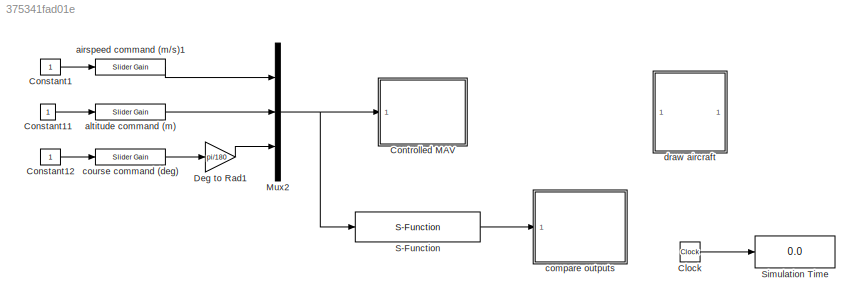
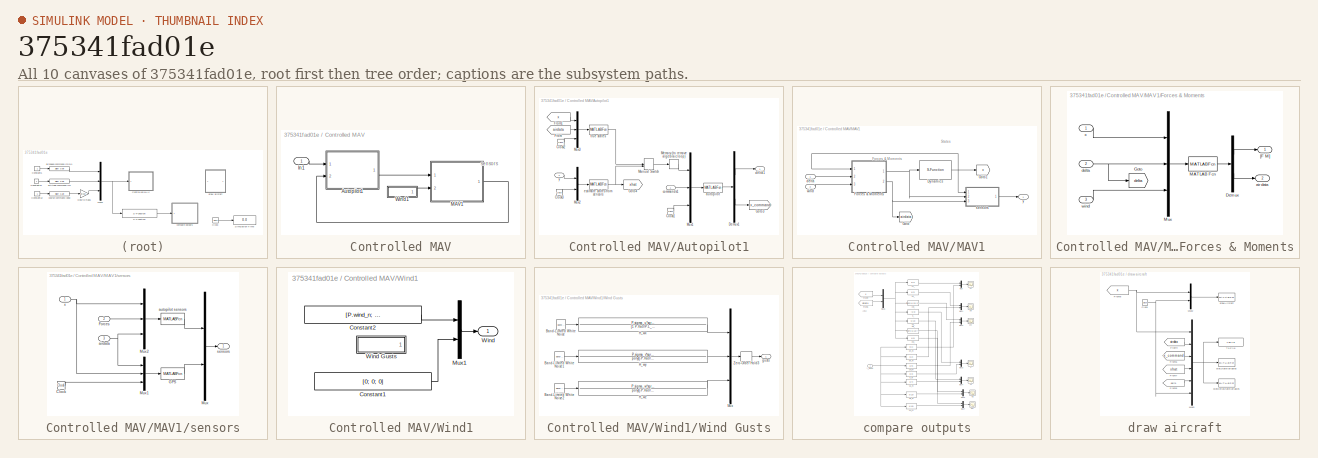
[diagram: thumbnail index - all 10 canvases of the model, root first then tree order]
MODEL slx_375341fad01e
KIND model
CONFIG AbsTol = auto
CONFIG EnableMultiTasking = on
CONFIG FixedStep = auto
CONFIG InitFcn = param_chap9
CONFIG MaxStep = auto
CONFIG MinStep = auto
CONFIG RelTol = 1e-3
CONFIG SampleTimeConstraint = Unconstrained
CONFIG Solver = ode45
CONFIG SolverName = ode45
CONFIG StartTime = 0.0
CONFIG StopTime = 99999
BLOCK [Clock] Clock
BLOCK [Constant] Constant1
BLOCK [Constant] Constant11
BLOCK [Constant] Constant12
BLOCK [SubSystem] Controlled MAV
  Ports = [1]
  RequestExecContextInheritance = off
  Variant = off
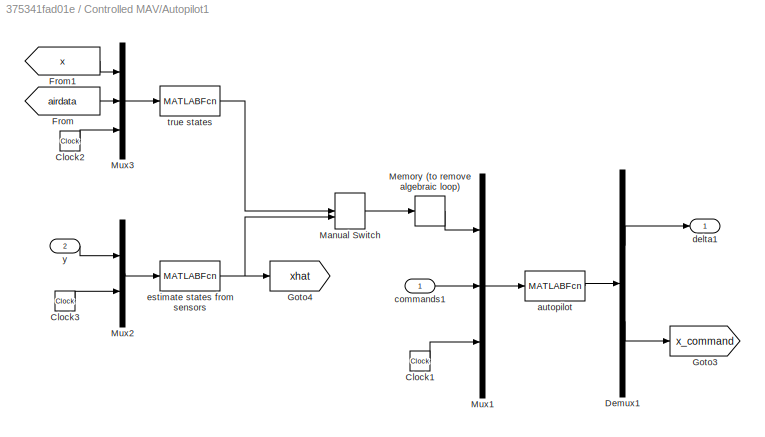
BLOCK [SubSystem] Controlled MAV/Autopilot1
  Ports = [2, 1]
  RequestExecContextInheritance = off
  Variant = off
BLOCK [Clock] Controlled MAV/Autopilot1/Clock1
BLOCK [Clock] Controlled MAV/Autopilot1/Clock2
BLOCK [Clock] Controlled MAV/Autopilot1/Clock3
BLOCK [Demux] Controlled MAV/Autopilot1/Demux1
  DisplayOption = bar
  Outputs = [4;12]
  Ports = [1, 2]
BLOCK [From] Controlled MAV/Autopilot1/From
  GotoTag = airdata
  TagVisibility = global
BLOCK [From] Controlled MAV/Autopilot1/From1
  GotoTag = x
  TagVisibility = global
BLOCK [Goto] Controlled MAV/Autopilot1/Goto3
  GotoTag = x_command
  TagVisibility = global
BLOCK [Goto] Controlled MAV/Autopilot1/Goto4
  GotoTag = xhat
  TagVisibility = global
BLOCK [ManualSwitch] Controlled MAV/Autopilot1/Manual Switch
BLOCK [Memory] Controlled MAV/Autopilot1/Memory (to remove algebraic loop)
BLOCK [Mux] Controlled MAV/Autopilot1/Mux1
  DisplayOption = bar
  Inputs = 3
  Ports = [3, 1]
BLOCK [Mux] Controlled MAV/Autopilot1/Mux2
  DisplayOption = bar
  Inputs = 2
  Ports = [2, 1]
BLOCK [Mux] Controlled MAV/Autopilot1/Mux3
  DisplayOption = bar
  Inputs = 3
  Ports = [3, 1]
BLOCK [MATLABFcn] Controlled MAV/Autopilot1/autopilot
  MATLABFcn = autopilot_phi_c(u,P)
  OutputDimensions = 4+12
  Ports = [1, 1]
  SampleTime = P.Ts
BLOCK [Inport] Controlled MAV/Autopilot1/commands1
  IconDisplay = Port number
BLOCK [Outport] Controlled MAV/Autopilot1/delta1
  IconDisplay = Port number
BLOCK [MATLABFcn] Controlled MAV/Autopilot1/estimate states from sensors
  MATLABFcn = estimate_states(u,P)
  OutputDimensions = 19
  Ports = [1, 1]
  SampleTime = P.Ts
BLOCK [MATLABFcn] Controlled MAV/Autopilot1/true states
  MATLABFcn = true_states(u,P)
  OutputDimensions = 19
  Ports = [1, 1]
  SampleTime = P.Ts
BLOCK [Inport] Controlled MAV/Autopilot1/y
  IconDisplay = Port number
  Port = 2
BLOCK [Inport] Controlled MAV/In1
  IconDisplay = Port number
BLOCK [SubSystem] Controlled MAV/MAV1
  Ports = [2, 1]
  RequestExecContextInheritance = off
  Variant = off
BLOCK [S-Function] Controlled MAV/MAV1/Dynamics
  EnableBusSupport = off
  FunctionName = mav_dynamics
  Parameters = P
  Ports = [1, 1]
  SFcnIsStateOwnerBlock = off
  SFunctionDeploymentMode = off
BLOCK [SubSystem] Controlled MAV/MAV1/Forces & Moments
  Ports = [3, 2]
  RequestExecContextInheritance = off
  Variant = off
BLOCK [Demux] Controlled MAV/MAV1/Forces & Moments/Demux
  DisplayOption = bar
  Outputs = [6;6]
  Ports = [1, 2]
BLOCK [Goto] Controlled MAV/MAV1/Forces & Moments/Goto
  GotoTag = delta
  TagVisibility = global
BLOCK [MATLABFcn] Controlled MAV/MAV1/Forces & Moments/MATLAB Fcn
  MATLABFcn = forces_moments(u(1:12),u(13:16),u(17:22),P)
  OutputDimensions = 12
  Ports = [1, 1]
BLOCK [Mux] Controlled MAV/MAV1/Forces & Moments/Mux
  DisplayOption = bar
  Inputs = 3
  Ports = [3, 1]
BLOCK [Outport] Controlled MAV/MAV1/Forces & Moments/[F M]
  IconDisplay = Port number
BLOCK [Outport] Controlled MAV/MAV1/Forces & Moments/air data
  IconDisplay = Port number
  Port = 2
BLOCK [Inport] Controlled MAV/MAV1/Forces & Moments/delta
  IconDisplay = Port number
  Port = 2
BLOCK [Inport] Controlled MAV/MAV1/Forces & Moments/wind
  IconDisplay = Port number
  Port = 3
BLOCK [Inport] Controlled MAV/MAV1/Forces & Moments/x
  IconDisplay = Port number
BLOCK [Goto] Controlled MAV/MAV1/Goto
  GotoTag = airdata
  TagVisibility = global
BLOCK [Goto] Controlled MAV/MAV1/Goto1
  GotoTag = x
  TagVisibility = global
BLOCK [Inport] Controlled MAV/MAV1/delta
  IconDisplay = Port number
BLOCK [SubSystem] Controlled MAV/MAV1/sensors
  Ports = [3, 1]
  RequestExecContextInheritance = off
  Variant = off
BLOCK [Clock] Controlled MAV/MAV1/sensors/Clock
BLOCK [Inport] Controlled MAV/MAV1/sensors/Forces
  IconDisplay = Port number
  Port = 2
BLOCK [MATLABFcn] Controlled MAV/MAV1/sensors/GPS
  MATLABFcn = gps(u,P)
  OutputDimensions = 5
  Ports = [1, 1]
  SampleTime = P.Ts_gps
BLOCK [Mux] Controlled MAV/MAV1/sensors/Mux
  DisplayOption = bar
  Inputs = 2
  Ports = [2, 1]
BLOCK [Mux] Controlled MAV/MAV1/sensors/Mux1
  DisplayOption = bar
  Inputs = 3
  Ports = [3, 1]
BLOCK [Mux] Controlled MAV/MAV1/sensors/Mux2
  DisplayOption = bar
  Inputs = 3
  Ports = [3, 1]
BLOCK [Inport] Controlled MAV/MAV1/sensors/airdata
  IconDisplay = Port number
  Port = 3
BLOCK [MATLABFcn] Controlled MAV/MAV1/sensors/autopilot sensors
  MATLABFcn = sensors(u,P)
  OutputDimensions = 8
  Ports = [1, 1]
  SampleTime = P.Ts
BLOCK [Outport] Controlled MAV/MAV1/sensors/sensors
  IconDisplay = Port number
BLOCK [Inport] Controlled MAV/MAV1/sensors/x
  IconDisplay = Port number
BLOCK [Inport] Controlled MAV/MAV1/wind
  IconDisplay = Port number
  Port = 2
BLOCK [Outport] Controlled MAV/MAV1/y
  IconDisplay = Port number
BLOCK [SubSystem] Controlled MAV/Wind1
  Ports = [0, 1]
  RequestExecContextInheritance = off
  Variant = off
BLOCK [Constant] Controlled MAV/Wind1/Constant1
  Value = [0; 0; 0]
BLOCK [Constant] Controlled MAV/Wind1/Constant2
  Value = [P.wind_n; P.wind_e; P.wind_d]
BLOCK [Mux] Controlled MAV/Wind1/Mux1
  DisplayOption = bar
  Inputs = 2
  Ports = [2, 1]
BLOCK [Outport] Controlled MAV/Wind1/Wind
  IconDisplay = Port number
BLOCK [SubSystem] Controlled MAV/Wind1/Wind Gusts
  Ports = [0, 1]
  RequestExecContextInheritance = off
  Variant = off
BLOCK [Reference] Controlled MAV/Wind1/Wind Gusts/Band-Limited White Noise  REF=simulink/Sources/Band-Limited
White Noise
  Ports = [0, 1]
  SourceBlock = simulink/Sources/Band-Limited\nWhite Noise
  SourceProductBaseCode = SL
  SourceProductName = Simulink
  SourceType = Band-Limited White Noise.
BLOCK [Reference] Controlled MAV/Wind1/Wind Gusts/Band-Limited White Noise1  REF=simulink/Sources/Band-Limited
White Noise
  Ports = [0, 1]
  SourceBlock = simulink/Sources/Band-Limited\nWhite Noise
  SourceProductBaseCode = SL
  SourceProductName = Simulink
  SourceType = Band-Limited White Noise.
BLOCK [Reference] Controlled MAV/Wind1/Wind Gusts/Band-Limited White Noise2  REF=simulink/Sources/Band-Limited
White Noise
  Ports = [0, 1]
  SourceBlock = simulink/Sources/Band-Limited\nWhite Noise
  SourceProductBaseCode = SL
  SourceProductName = Simulink
  SourceType = Band-Limited White Noise.
BLOCK [TransferFcn] Controlled MAV/Wind1/Wind Gusts/H_wx
  Denominator = [1 P.Va0/P.L_u]
  Numerator = P.sigma_u*sqrt(2*P.Va0/P.L_u)
BLOCK [TransferFcn] Controlled MAV/Wind1/Wind Gusts/H_wy
  Denominator = poly([-P.Va0/P.L_v, -P.Va0/P.L_v])
  Numerator = P.sigma_v*sqrt(3*P.Va0/P.L_v)*[0, 1, P.Va0/sqrt(3)/P.L_v]
BLOCK [TransferFcn] Controlled MAV/Wind1/Wind Gusts/H_wz
  Denominator = poly([-P.Va0/P.L_w, -P.Va0/P.L_w])
  Numerator = P.sigma_w*sqrt(3*P.Va0/P.L_w)*[0, 1, P.Va0/sqrt(3)/P.L_w]
BLOCK [Mux] Controlled MAV/Wind1/Wind Gusts/Mux
  DisplayOption = bar
  Inputs = 3
  Ports = [3, 1]
BLOCK [ZeroOrderHold] Controlled MAV/Wind1/Wind Gusts/Zero-Order Hold3
  SampleTime = P.Ts
BLOCK [Outport] Controlled MAV/Wind1/Wind Gusts/gusts
  IconDisplay = Port number
BLOCK [Gain] Deg to Rad1
  Gain = pi/180
  OutDataTypeStr = Inherit: Inherit via internal rule
  ParamDataTypeStr = Inherit: Inherit via internal rule
  SaturateOnIntegerOverflow = off
BLOCK [Mux] Mux2
  DisplayOption = bar
  Inputs = 3
  Ports = [3, 1]
BLOCK [S-Function] S-Function
  EnableBusSupport = off
  FunctionName = guidance_model_2
  Parameters = P
  Ports = [1, 1]
  SFcnIsStateOwnerBlock = off
  SFunctionDeploymentMode = off
BLOCK [Display] Simulation Time
  Decimation = 1
  Ports = [1]
BLOCK [Reference] airspeed command (m//s)1  REF=simulink/Math
Operations/Slider
Gain
  Ports = [1, 1]
  SourceBlock = simulink/Math\nOperations/Slider\nGain
  SourceProductBaseCode = SL
  SourceProductName = Simulink
  SourceType = Slider Gain
BLOCK [Reference] altitude command (m)  REF=simulink/Math
Operations/Slider
Gain
  Ports = [1, 1]
  SourceBlock = simulink/Math\nOperations/Slider\nGain
  SourceProductBaseCode = SL
  SourceProductName = Simulink
  SourceType = Slider Gain
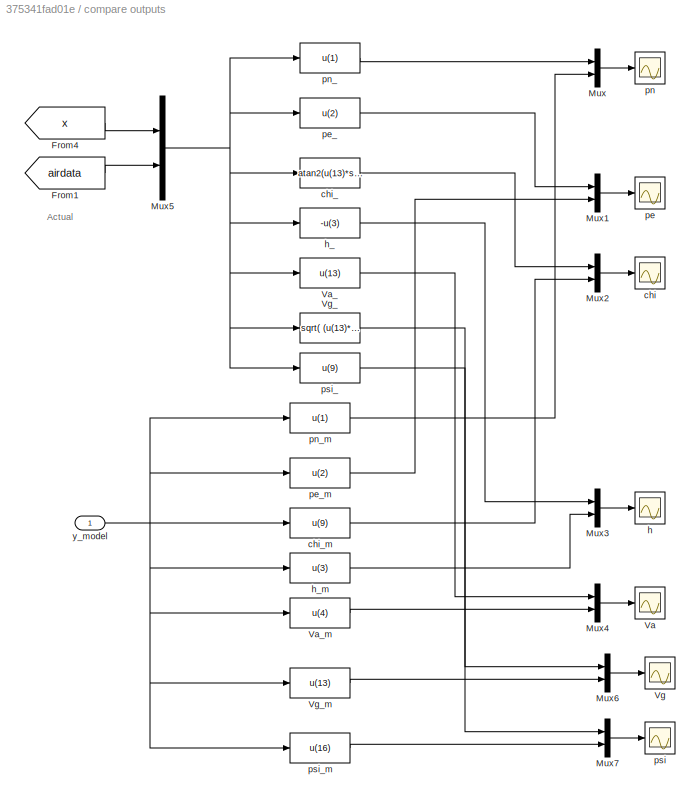
BLOCK [SubSystem] compare outputs
  Ports = [1]
  RequestExecContextInheritance = off
  Variant = off
BLOCK [From] compare outputs/From1
  CloseFcn = tagdialog Close
  GotoTag = airdata
  TagVisibility = global
BLOCK [From] compare outputs/From4
  CloseFcn = tagdialog Close
  GotoTag = x
  TagVisibility = global
BLOCK [Mux] compare outputs/Mux
  DisplayOption = bar
  Inputs = 2
  Ports = [2, 1]
BLOCK [Mux] compare outputs/Mux1
  DisplayOption = bar
  Inputs = 2
  Ports = [2, 1]
BLOCK [Mux] compare outputs/Mux2
  DisplayOption = bar
  Inputs = 2
  Ports = [2, 1]
BLOCK [Mux] compare outputs/Mux3
  DisplayOption = bar
  Inputs = 2
  Ports = [2, 1]
BLOCK [Mux] compare outputs/Mux4
  DisplayOption = bar
  Inputs = 2
  Ports = [2, 1]
BLOCK [Mux] compare outputs/Mux5
  DisplayOption = bar
  Inputs = 2
  Ports = [2, 1]
BLOCK [Mux] compare outputs/Mux6
  DisplayOption = bar
  Inputs = 2
  Ports = [2, 1]
BLOCK [Mux] compare outputs/Mux7
  DisplayOption = bar
  Inputs = 2
  Ports = [2, 1]
BLOCK [Scope] compare outputs/Va
  NumInputPorts = 1
  Ports = [1]
  ScopeSpecificationString = Simulink.scopes.TimeScopeBlockCfg('CurrentConfiguration', extmgr.ConfigurationSet(extmgr.Configuration('Core','General UI',true),extmgr.Configuration('Core','Source UI',true),extmgr.Configuration('Sources','WiredSimulink',true,'DataLoggingVariableName','ScopeData4','DataLoggingSaveFormat','StructureWithTime','DataLoggingDecimation','1','DataLoggingDecimateData',true),extmgr.Configuration('Visuals'...<+1748ch>
BLOCK [Fcn] compare outputs/Va_
  Expr = u(13)
BLOCK [Fcn] compare outputs/Va_m
  Expr = u(4)
BLOCK [Scope] compare outputs/Vg
  NumInputPorts = 1
  Ports = [1]
  ScopeSpecificationString = Simulink.scopes.TimeScopeBlockCfg('CurrentConfiguration', extmgr.ConfigurationSet(extmgr.Configuration('Core','General UI',true),extmgr.Configuration('Core','Source UI',true),extmgr.Configuration('Sources','WiredSimulink',true,'DataLoggingVariableName','ScopeData5','DataLoggingSaveFormat','StructureWithTime','DataLoggingDecimation','1','DataLoggingDecimateData',true),extmgr.Configuration('Visuals'...<+1695ch>
BLOCK [Fcn] compare outputs/Vg_
  Expr = sqrt( (u(13)*sin(u(9))+u(17))^2+(u(13)*cos(u(9))+u(16))^2)
BLOCK [Fcn] compare outputs/Vg_m
  Expr = u(13)
BLOCK [Scope] compare outputs/chi
  NumInputPorts = 1
  Ports = [1]
  ScopeSpecificationString = Simulink.scopes.TimeScopeBlockCfg('CurrentConfiguration', extmgr.ConfigurationSet(extmgr.Configuration('Core','General UI',true),extmgr.Configuration('Core','Source UI',true),extmgr.Configuration('Sources','WiredSimulink',true,'DataLoggingVariableName','ScopeData2','DataLoggingSaveFormat','StructureWithTime','DataLoggingDecimation','1','DataLoggingDecimateData',true),extmgr.Configuration('Visuals'...<+1743ch>
BLOCK [Fcn] compare outputs/chi_
  Expr = atan2(u(13)*sin(u(9))+u(17), u(13)*cos(u(9))+u(16))
BLOCK [Fcn] compare outputs/chi_m
  Expr = u(9)
BLOCK [Scope] compare outputs/h
  NumInputPorts = 1
  Ports = [1]
  ScopeSpecificationString = Simulink.scopes.TimeScopeBlockCfg('CurrentConfiguration', extmgr.ConfigurationSet(extmgr.Configuration('Core','General UI',true),extmgr.Configuration('Core','Source UI',true),extmgr.Configuration('Sources','WiredSimulink',true,'DataLoggingVariableName','ScopeData3','DataLoggingSaveFormat','StructureWithTime','DataLoggingDecimation','1','DataLoggingDecimateData',true),extmgr.Configuration('Visuals'...<+1780ch>
BLOCK [Fcn] compare outputs/h_
  Expr = -u(3)
BLOCK [Fcn] compare outputs/h_m
  Expr = u(3)
BLOCK [Scope] compare outputs/pe
  NumInputPorts = 1
  Ports = [1]
  ScopeSpecificationString = Simulink.scopes.TimeScopeBlockCfg('CurrentConfiguration', extmgr.ConfigurationSet(extmgr.Configuration('Core','General UI',true),extmgr.Configuration('Core','Source UI',true),extmgr.Configuration('Sources','WiredSimulink',true,'DataLoggingVariableName','ScopeData1','DataLoggingSaveFormat','StructureWithTime','DataLoggingDecimation','1','DataLoggingDecimateData',true),extmgr.Configuration('Visuals'...<+1699ch>
BLOCK [Fcn] compare outputs/pe_
  Expr = u(2)
BLOCK [Fcn] compare outputs/pe_m
  Expr = u(2)
BLOCK [Scope] compare outputs/pn
  NumInputPorts = 1
  Ports = [1]
  ScopeSpecificationString = Simulink.scopes.TimeScopeBlockCfg('CurrentConfiguration', extmgr.ConfigurationSet(extmgr.Configuration('Core','General UI',true),extmgr.Configuration('Core','Source UI',true),extmgr.Configuration('Sources','WiredSimulink',true,'DataLoggingSaveFormat','StructureWithTime','DataLoggingDecimation','1','DataLoggingDecimateData',true),extmgr.Configuration('Visuals','Time Domain',true,'SerializedDisplays...<+1658ch>
BLOCK [Fcn] compare outputs/pn_
  Expr = u(1)
BLOCK [Fcn] compare outputs/pn_m
  Expr = u(1)
BLOCK [Scope] compare outputs/psi
  NumInputPorts = 1
  Ports = [1]
  ScopeSpecificationString = Simulink.scopes.TimeScopeBlockCfg('CurrentConfiguration', extmgr.ConfigurationSet(extmgr.Configuration('Core','General UI',true),extmgr.Configuration('Core','Source UI',true),extmgr.Configuration('Sources','WiredSimulink',true,'DataLoggingVariableName','ScopeData6','DataLoggingSaveFormat','StructureWithTime','DataLoggingDecimation','1','DataLoggingDecimateData',true),extmgr.Configuration('Visuals'...<+1713ch>
BLOCK [Fcn] compare outputs/psi_
  Expr = u(9)
BLOCK [Fcn] compare outputs/psi_m
  Expr = u(16)
BLOCK [Inport] compare outputs/y_model
  IconDisplay = Port number
BLOCK [Reference] course command (deg)  REF=simulink/Math
Operations/Slider
Gain
  Ports = [1, 1]
  SourceBlock = simulink/Math\nOperations/Slider\nGain
  SourceProductBaseCode = SL
  SourceProductName = Simulink
  SourceType = Slider Gain
BLOCK [SubSystem] draw aircraft
  Ports = []
  RequestExecContextInheritance = off
  Variant = off
BLOCK [Clock] draw aircraft/Clock
BLOCK [From] draw aircraft/From4
  GotoTag = airdata
  TagVisibility = global
BLOCK [From] draw aircraft/From5
  CloseFcn = tagdialog Close
  GotoTag = delta
  TagVisibility = global
BLOCK [From] draw aircraft/From6
  CloseFcn = tagdialog Close
  GotoTag = x_command
  TagVisibility = global
BLOCK [From] draw aircraft/From7
  CloseFcn = tagdialog Close
  GotoTag = xhat
  TagVisibility = global
BLOCK [From] draw aircraft/From8
  CloseFcn = tagdialog Close
  GotoTag = x
  TagVisibility = global
BLOCK [Mux] draw aircraft/Mux2
  DisplayOption = bar
  Inputs = 2
  Ports = [2, 1]
BLOCK [Mux] draw aircraft/Mux3
  DisplayOption = bar
  Inputs = 6
  Ports = [6, 1]
BLOCK [ToFile] draw aircraft/To File
  Filename = state_data.mat
  Ports = [1]
BLOCK [MATLABFcn] draw aircraft/drawAircraft
  MATLABFcn = drawAircraft(u)
  OutputDimensions = 0
  Ports = [1]
  SampleTime = 0.1
BLOCK [MATLABFcn] draw aircraft/plotExtraStateVariables
  MATLABFcn = plotextramavstatevariables(u,P)
  OutputDimensions = 0
  Ports = [1]
  SampleTime = 0.1
BLOCK [MATLABFcn] draw aircraft/plotStateVariables
  MATLABFcn = plotmavstatevariables(u)
  OutputDimensions = 0
  Ports = [1]
  SampleTime = 0.1
ANNOTATION Controlled MAV: sensors
ANNOTATION Controlled MAV/MAV1: Forces & Moments
ANNOTATION Controlled MAV/MAV1: States
ANNOTATION compare outputs: Actual
LINE Clock:1 -> Simulation Time:1
LINE Constant11:1 -> altitude command (m):1
LINE Constant12:1 -> course command (deg):1
LINE Constant1:1 -> airspeed command (m//s)1:1
LINE Controlled MAV/Autopilot1/Clock1:1 -> Controlled MAV/Autopilot1/Mux1:3
LINE Controlled MAV/Autopilot1/Clock2:1 -> Controlled MAV/Autopilot1/Mux3:3
LINE Controlled MAV/Autopilot1/Clock3:1 -> Controlled MAV/Autopilot1/Mux2:2
LINE Controlled MAV/Autopilot1/Demux1:1 -> Controlled MAV/Autopilot1/delta1:1
LINE Controlled MAV/Autopilot1/Demux1:2 -> Controlled MAV/Autopilot1/Goto3:1
LINE Controlled MAV/Autopilot1/From1:1 -> Controlled MAV/Autopilot1/Mux3:1
LINE Controlled MAV/Autopilot1/From:1 -> Controlled MAV/Autopilot1/Mux3:2
LINE Controlled MAV/Autopilot1/Manual Switch:1 -> Controlled MAV/Autopilot1/Memory (to remove algebraic loop):1
LINE Controlled MAV/Autopilot1/Memory (to remove algebraic loop):1 -> Controlled MAV/Autopilot1/Mux1:1
LINE Controlled MAV/Autopilot1/Mux1:1 -> Controlled MAV/Autopilot1/autopilot:1
LINE Controlled MAV/Autopilot1/Mux2:1 -> Controlled MAV/Autopilot1/estimate states from sensors:1
LINE Controlled MAV/Autopilot1/Mux3:1 -> Controlled MAV/Autopilot1/true states:1
LINE Controlled MAV/Autopilot1/autopilot:1 -> Controlled MAV/Autopilot1/Demux1:1
LINE Controlled MAV/Autopilot1/commands1:1 -> Controlled MAV/Autopilot1/Mux1:2
NET Controlled MAV/Autopilot1/estimate states from sensors:1 -> Controlled MAV/Autopilot1/Goto4:1, Controlled MAV/Autopilot1/Manual Switch:2
LINE Controlled MAV/Autopilot1/true states:1 -> Controlled MAV/Autopilot1/Manual Switch:1
LINE Controlled MAV/Autopilot1/y:1 -> Controlled MAV/Autopilot1/Mux2:1
LINE Controlled MAV/Autopilot1:1 -> Controlled MAV/MAV1:1
LINE Controlled MAV/In1:1 -> Controlled MAV/Autopilot1:1
NET Controlled MAV/MAV1/Dynamics:1 -> Controlled MAV/MAV1/Forces & Moments:1, Controlled MAV/MAV1/Goto1:1, Controlled MAV/MAV1/sensors:1
LINE Controlled MAV/MAV1/Forces & Moments/Demux:1 -> Controlled MAV/MAV1/Forces & Moments/[F M]:1
LINE Controlled MAV/MAV1/Forces & Moments/Demux:2 -> Controlled MAV/MAV1/Forces & Moments/air data:1
LINE Controlled MAV/MAV1/Forces & Moments/MATLAB Fcn:1 -> Controlled MAV/MAV1/Forces & Moments/Demux:1
LINE Controlled MAV/MAV1/Forces & Moments/Mux:1 -> Controlled MAV/MAV1/Forces & Moments/MATLAB Fcn:1
NET Controlled MAV/MAV1/Forces & Moments/delta:1 -> Controlled MAV/MAV1/Forces & Moments/Goto:1, Controlled MAV/MAV1/Forces & Moments/Mux:2
LINE Controlled MAV/MAV1/Forces & Moments/wind:1 -> Controlled MAV/MAV1/Forces & Moments/Mux:3
LINE Controlled MAV/MAV1/Forces & Moments/x:1 -> Controlled MAV/MAV1/Forces & Moments/Mux:1
NET Controlled MAV/MAV1/Forces & Moments:1 -> Controlled MAV/MAV1/Dynamics:1, Controlled MAV/MAV1/sensors:2
NET Controlled MAV/MAV1/Forces & Moments:2 -> Controlled MAV/MAV1/Goto:1, Controlled MAV/MAV1/sensors:3
LINE Controlled MAV/MAV1/delta:1 -> Controlled MAV/MAV1/Forces & Moments:2
LINE Controlled MAV/MAV1/sensors/Clock:1 -> Controlled MAV/MAV1/sensors/Mux1:3
LINE Controlled MAV/MAV1/sensors/Forces:1 -> Controlled MAV/MAV1/sensors/Mux2:2
LINE Controlled MAV/MAV1/sensors/GPS:1 -> Controlled MAV/MAV1/sensors/Mux:2
LINE Controlled MAV/MAV1/sensors/Mux1:1 -> Controlled MAV/MAV1/sensors/GPS:1
LINE Controlled MAV/MAV1/sensors/Mux2:1 -> Controlled MAV/MAV1/sensors/autopilot sensors:1
LINE Controlled MAV/MAV1/sensors/Mux:1 -> Controlled MAV/MAV1/sensors/sensors:1
NET Controlled MAV/MAV1/sensors/airdata:1 -> Controlled MAV/MAV1/sensors/Mux1:1, Controlled MAV/MAV1/sensors/Mux2:3
LINE Controlled MAV/MAV1/sensors/autopilot sensors:1 -> Controlled MAV/MAV1/sensors/Mux:1
NET Controlled MAV/MAV1/sensors/x:1 -> Controlled MAV/MAV1/sensors/Mux1:2, Controlled MAV/MAV1/sensors/Mux2:1
LINE Controlled MAV/MAV1/sensors:1 -> Controlled MAV/MAV1/y:1
LINE Controlled MAV/MAV1/wind:1 -> Controlled MAV/MAV1/Forces & Moments:3
LINE Controlled MAV/MAV1:1 -> Controlled MAV/Autopilot1:2
LINE Controlled MAV/Wind1/Constant1:1 -> Controlled MAV/Wind1/Mux1:2
LINE Controlled MAV/Wind1/Constant2:1 -> Controlled MAV/Wind1/Mux1:1
LINE Controlled MAV/Wind1/Mux1:1 -> Controlled MAV/Wind1/Wind:1
LINE Controlled MAV/Wind1/Wind Gusts/Band-Limited White Noise1:1 -> Controlled MAV/Wind1/Wind Gusts/H_wy:1
LINE Controlled MAV/Wind1/Wind Gusts/Band-Limited White Noise2:1 -> Controlled MAV/Wind1/Wind Gusts/H_wz:1
LINE Controlled MAV/Wind1/Wind Gusts/Band-Limited White Noise:1 -> Controlled MAV/Wind1/Wind Gusts/H_wx:1
LINE Controlled MAV/Wind1/Wind Gusts/H_wx:1 -> Controlled MAV/Wind1/Wind Gusts/Mux:1
LINE Controlled MAV/Wind1/Wind Gusts/H_wy:1 -> Controlled MAV/Wind1/Wind Gusts/Mux:2
LINE Controlled MAV/Wind1/Wind Gusts/H_wz:1 -> Controlled MAV/Wind1/Wind Gusts/Mux:3
LINE Controlled MAV/Wind1/Wind Gusts/Mux:1 -> Controlled MAV/Wind1/Wind Gusts/Zero-Order Hold3:1
LINE Controlled MAV/Wind1/Wind Gusts/Zero-Order Hold3:1 -> Controlled MAV/Wind1/Wind Gusts/gusts:1
LINE Controlled MAV/Wind1:1 -> Controlled MAV/MAV1:2
LINE Deg to Rad1:1 -> Mux2:3
NET Mux2:1 -> Controlled MAV:1, S-Function:1
LINE S-Function:1 -> compare outputs:1
LINE airspeed command (m//s)1:1 -> Mux2:1
LINE altitude command (m):1 -> Mux2:2
LINE compare outputs/From1:1 -> compare outputs/Mux5:2
LINE compare outputs/From4:1 -> compare outputs/Mux5:1
LINE compare outputs/Mux1:1 -> compare outputs/pe:1
LINE compare outputs/Mux2:1 -> compare outputs/chi:1
LINE compare outputs/Mux3:1 -> compare outputs/h:1
LINE compare outputs/Mux4:1 -> compare outputs/Va:1
NET compare outputs/Mux5:1 -> compare outputs/Va_:1, compare outputs/Vg_:1, compare outputs/chi_:1, compare outputs/h_:1, compare outputs/pe_:1, compare outputs/pn_:1, compare outputs/psi_:1
LINE compare outputs/Mux6:1 -> compare outputs/Vg:1
LINE compare outputs/Mux7:1 -> compare outputs/psi:1
LINE compare outputs/Mux:1 -> compare outputs/pn:1
LINE compare outputs/Va_:1 -> compare outputs/Mux4:1
LINE compare outputs/Va_m:1 -> compare outputs/Mux4:2
LINE compare outputs/Vg_:1 -> compare outputs/Mux6:1
LINE compare outputs/Vg_m:1 -> compare outputs/Mux6:2
LINE compare outputs/chi_:1 -> compare outputs/Mux2:1
LINE compare outputs/chi_m:1 -> compare outputs/Mux2:2
LINE compare outputs/h_:1 -> compare outputs/Mux3:1
LINE compare outputs/h_m:1 -> compare outputs/Mux3:2
LINE compare outputs/pe_:1 -> compare outputs/Mux1:1
LINE compare outputs/pe_m:1 -> compare outputs/Mux1:2
LINE compare outputs/pn_:1 -> compare outputs/Mux:1
LINE compare outputs/pn_m:1 -> compare outputs/Mux:2
LINE compare outputs/psi_:1 -> compare outputs/Mux7:1
LINE compare outputs/psi_m:1 -> compare outputs/Mux7:2
NET compare outputs/y_model:1 -> compare outputs/Va_m:1, compare outputs/Vg_m:1, compare outputs/chi_m:1, compare outputs/h_m:1, compare outputs/pe_m:1, compare outputs/pn_m:1, compare outputs/psi_m:1
LINE course command (deg):1 -> Deg to Rad1:1
NET draw aircraft/Clock:1 -> draw aircraft/Mux2:2, draw aircraft/Mux3:6
LINE draw aircraft/From4:1 -> draw aircraft/Mux3:2
LINE draw aircraft/From5:1 -> draw aircraft/Mux3:5
LINE draw aircraft/From6:1 -> draw aircraft/Mux3:3
LINE draw aircraft/From7:1 -> draw aircraft/Mux3:4
NET draw aircraft/From8:1 -> draw aircraft/Mux2:1, draw aircraft/Mux3:1
LINE draw aircraft/Mux2:1 -> draw aircraft/drawAircraft:1
NET draw aircraft/Mux3:1 -> draw aircraft/To File:1, draw aircraft/plotExtraStateVariables:1, draw aircraft/plotStateVariables:1
note: NET lines group one-source signal fan-out (src -> all destinations, sorted); 1:1 wires keep LINE
